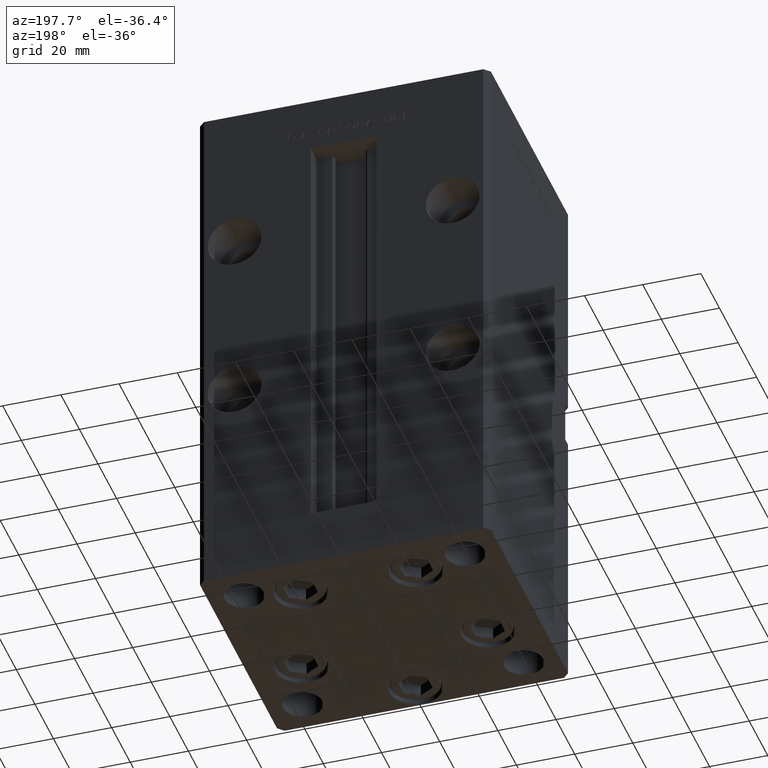
[diagram: clean part render]
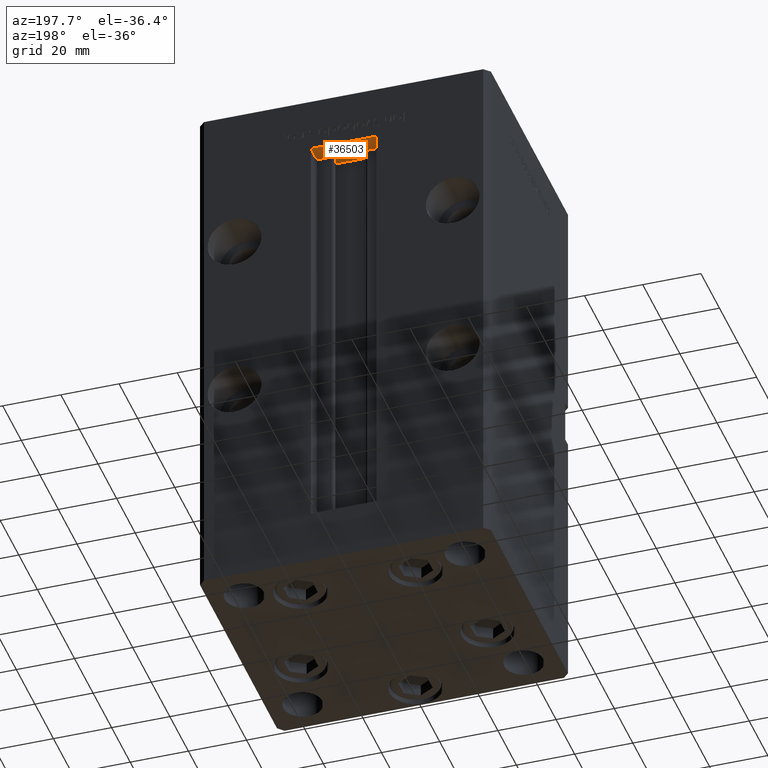
[diagram: same view with one face highlighted and labeled with its STEP entity id]
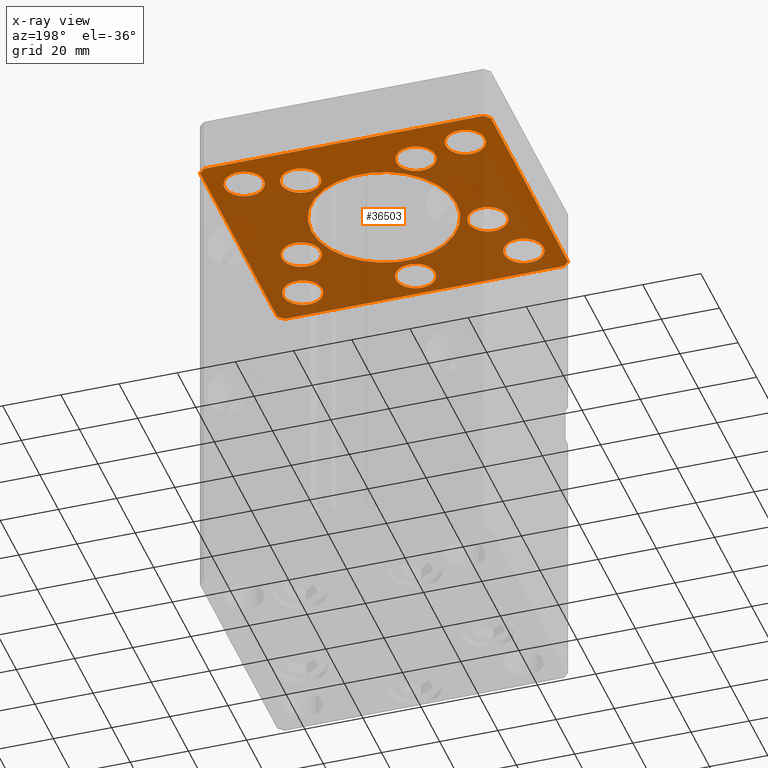
[diagram: x-ray of the same camera — body ghosted, the highlighted face saturated]
A machine part, auxiliary view. The second image highlights one B-rep face of the part: STEP entity #36503.
The next image is the same camera in x-ray: the body ghosted, the highlighted face saturated — about 67% of this face is hidden behind the body in this view.
In plain terms, the highlighted planar face has unit normal (0, 0, 1).
Its self-contained STEP definition (entity closure, byte-faithful):
#273 = LINE ( 'NONE', #49180, #3120 ) ;
#426 = EDGE_CURVE ( 'NONE', #30360, #2090, #19878, .T. ) ;
#481 = FACE_BOUND ( 'NONE', #7501, .T. ) ;
#872 = DIRECTION ( 'NONE',  ( 0.000000000000000000, -0.000000000000000000, -1.000000000000000000 ) ) ;
#1043 = CARTESIAN_POINT ( 'NONE',  ( -48.00000000000000711, -43.50000000000002842, -19.00000000000000000 ) ) ;
#1093 = ORIENTED_EDGE ( 'NONE', *, *, #16519, .F. ) ;
#1665 = ORIENTED_EDGE ( 'NONE', *, *, #46559, .F. ) ;
#1690 = VERTEX_POINT ( 'NONE', #23105 ) ;
#2090 = VERTEX_POINT ( 'NONE', #21383 ) ;
#2268 = CARTESIAN_POINT ( 'NONE',  ( 32.05550741379015989, -11.33333333333332860, -19.00000000000000000 ) ) ;
#2748 = VERTEX_POINT ( 'NONE', #17982 ) ;
#2860 = EDGE_LOOP ( 'NONE', ( #5448, #18806 ) ) ;
#2925 = AXIS2_PLACEMENT_3D ( 'NONE', #19953, #52480, #19414 ) ;
#3008 = EDGE_LOOP ( 'NONE', ( #20061, #1665 ) ) ;
#3120 = VECTOR ( 'NONE', #48642, 1000.000000000000114 ) ;
#3140 = DIRECTION ( 'NONE',  ( 1.000000000000000000, 0.000000000000000000, 0.000000000000000000 ) ) ;
#3162 = DIRECTION ( 'NONE',  ( -0.7071067811865536790, -0.7071067811865414665, 0.000000000000000000 ) ) ;
#3183 = CARTESIAN_POINT ( 'NONE',  ( 38.00000000000000000, 31.50000000000000000, -19.00000000000000000 ) ) ;
#3200 = CIRCLE ( 'NONE', #49537, 6.749999999999999112 ) ;
#3295 = CARTESIAN_POINT ( 'NONE',  ( -38.00000000000000000, 31.50000000000000000, -19.00000000000000000 ) ) ;
#3358 = CARTESIAN_POINT ( 'NONE',  ( 44.75000000000000711, -31.50000000000000711, -19.00000000000000000 ) ) ;
#3369 = CARTESIAN_POINT ( 'NONE',  ( 25.00000000000000000, 0.000000000000000000, -19.00000000000000000 ) ) ;
#3732 = FACE_BOUND ( 'NONE', #43766, .T. ) ;
#4194 = EDGE_CURVE ( 'NONE', #40732, #15206, #46612, .T. ) ;
#4346 = EDGE_CURVE ( 'NONE', #38332, #20423, #42135, .T. ) ;
#4398 = EDGE_CURVE ( 'NONE', #2748, #1690, #37013, .T. ) ;
#5082 = DIRECTION ( 'NONE',  ( -0.000000000000000000, -0.000000000000000000, -1.000000000000000000 ) ) ;
#5448 = ORIENTED_EDGE ( 'NONE', *, *, #11540, .F. ) ;
#5474 = EDGE_LOOP ( 'NONE', ( #36344, #10101, #31749, #16072, #6075, #28567, #12415, #27977 ) ) ;
#5723 = DIRECTION ( 'NONE',  ( 1.000000000000000000, 0.000000000000000000, 0.000000000000000000 ) ) ;
#6075 = ORIENTED_EDGE ( 'NONE', *, *, #4194, .F. ) ;
#6144 = EDGE_CURVE ( 'NONE', #9394, #6585, #41348, .T. ) ;
#6324 = EDGE_CURVE ( 'NONE', #49985, #40732, #32122, .T. ) ;
#6406 = DIRECTION ( 'NONE',  ( 8.360113137237620037E-17, -1.000000000000000000, 0.000000000000000000 ) ) ;
#6585 = VERTEX_POINT ( 'NONE', #44129 ) ;
#6684 = EDGE_CURVE ( 'NONE', #25538, #29711, #40612, .T. ) ;
#6723 = CIRCLE ( 'NONE', #45434, 6.749999999999999112 ) ;
#7162 = CARTESIAN_POINT ( 'NONE',  ( 44.75000000000000000, 31.50000000000000000, -19.00000000000000000 ) ) ;
#7501 = EDGE_LOOP ( 'NONE', ( #7869, #15244 ) ) ;
#7566 = VECTOR ( 'NONE', #6406, 1000.000000000000000 ) ;
#7869 = ORIENTED_EDGE ( 'NONE', *, *, #15639, .T. ) ;
#8017 = FACE_OUTER_BOUND ( 'NONE', #5474, .T. ) ;
#8100 = EDGE_CURVE ( 'NONE', #36306, #13310, #11509, .T. ) ;
#8146 = CARTESIAN_POINT ( 'NONE',  ( -38.00000000000000711, -31.50000000000000711, -19.00000000000000000 ) ) ;
#8287 = FACE_BOUND ( 'NONE', #42581, .T. ) ;
#8561 = CARTESIAN_POINT ( 'NONE',  ( 0.000000000000000000, 0.000000000000000000, -19.00000000000000000 ) ) ;
#8680 = DIRECTION ( 'NONE',  ( -0.000000000000000000, -0.000000000000000000, -1.000000000000000000 ) ) ;
#8977 = CARTESIAN_POINT ( 'NONE',  ( -48.00000000000000711, -43.50000000000002842, -19.00000000000000000 ) ) ;
#9052 = EDGE_CURVE ( 'NONE', #29120, #26952, #47573, .T. ) ;
#9376 = DIRECTION ( 'NONE',  ( 1.000000000000000000, 0.000000000000000000, 0.000000000000000000 ) ) ;
#9394 = VERTEX_POINT ( 'NONE', #46732 ) ;
#10101 = ORIENTED_EDGE ( 'NONE', *, *, #46663, .F. ) ;
#10111 = DIRECTION ( 'NONE',  ( -1.000000000000000000, -2.891205793294678326E-16, 0.000000000000000000 ) ) ;
#10710 = CIRCLE ( 'NONE', #28731, 6.749999999999999112 ) ;
#11509 = CIRCLE ( 'NONE', #48414, 6.749999999999999112 ) ;
#11540 = EDGE_CURVE ( 'NONE', #29711, #25538, #11586, .T. ) ;
#11586 = CIRCLE ( 'NONE', #2925, 6.749999999999999112 ) ;
#11772 = FACE_BOUND ( 'NONE', #2860, .T. ) ;
#11821 = DIRECTION ( 'NONE',  ( 1.000000000000000000, 0.000000000000000000, 0.000000000000000000 ) ) ;
#12415 = ORIENTED_EDGE ( 'NONE', *, *, #41420, .F. ) ;
#12615 = CARTESIAN_POINT ( 'NONE',  ( 0.000000000000000000, -34.00000000000000000, -19.00000000000000000 ) ) ;
#13109 = VERTEX_POINT ( 'NONE', #41044 ) ;
#13310 = VERTEX_POINT ( 'NONE', #7162 ) ;
#13401 = CARTESIAN_POINT ( 'NONE',  ( -50.00000000000000000, -41.50000000000004263, -19.00000000000000000 ) ) ;
#13636 = EDGE_LOOP ( 'NONE', ( #25519, #52615 ) ) ;
#13837 = DIRECTION ( 'NONE',  ( 1.000000000000000000, 0.000000000000000000, 0.000000000000000000 ) ) ;
#13971 = EDGE_CURVE ( 'NONE', #26952, #29120, #24396, .T. ) ;
#14267 = VECTOR ( 'NONE', #3162, 1000.000000000000000 ) ;
#14308 = VERTEX_POINT ( 'NONE', #16463 ) ;
#14446 = ORIENTED_EDGE ( 'NONE', *, *, #30461, .F. ) ;
#14667 = EDGE_CURVE ( 'NONE', #32455, #29106, #30325, .T. ) ;
#14759 = CARTESIAN_POINT ( 'NONE',  ( -31.25000000000000711, -31.50000000000000711, -19.00000000000000000 ) ) ;
#14995 = CARTESIAN_POINT ( 'NONE',  ( -50.00000000000000711, 41.49999999999999289, -19.00000000000000000 ) ) ;
#15049 = CIRCLE ( 'NONE', #35632, 6.749999999999999112 ) ;
#15206 = VERTEX_POINT ( 'NONE', #33655 ) ;
#15244 = ORIENTED_EDGE ( 'NONE', *, *, #8100, .T. ) ;
#15305 = AXIS2_PLACEMENT_3D ( 'NONE', #31306, #27802, #31841 ) ;
#15496 = CARTESIAN_POINT ( 'NONE',  ( -19.82068048781374969, 27.62499999999998934, -19.00000000000000000 ) ) ;
#15610 = DIRECTION ( 'NONE',  ( 0.000000000000000000, -0.000000000000000000, -1.000000000000000000 ) ) ;
#15639 = EDGE_CURVE ( 'NONE', #13310, #36306, #10710, .T. ) ;
#15659 = DIRECTION ( 'NONE',  ( -1.000000000000000000, 0.000000000000000000, 0.000000000000000000 ) ) ;
#16072 = ORIENTED_EDGE ( 'NONE', *, *, #20267, .F. ) ;
#16463 = CARTESIAN_POINT ( 'NONE',  ( 26.57068048781374969, 27.62499999999998934, -19.00000000000000000 ) ) ;
#16519 = EDGE_CURVE ( 'NONE', #43351, #22370, #52790, .T. ) ;
#16815 = EDGE_CURVE ( 'NONE', #22370, #43351, #15049, .T. ) ;
#17453 = AXIS2_PLACEMENT_3D ( 'NONE', #28558, #8680, #24797 ) ;
#17768 = EDGE_LOOP ( 'NONE', ( #37166, #39831 ) ) ;
#17804 = DIRECTION ( 'NONE',  ( 0.000000000000000000, -0.000000000000000000, -1.000000000000000000 ) ) ;
#17982 = CARTESIAN_POINT ( 'NONE',  ( 38.80550741379015989, -11.33333333333332860, -19.00000000000000000 ) ) ;
#18080 = CARTESIAN_POINT ( 'NONE',  ( -50.00000000000000711, 41.49999999999999289, -19.00000000000000000 ) ) ;
#18185 = AXIS2_PLACEMENT_3D ( 'NONE', #12615, #48910, #11821 ) ;
#18806 = ORIENTED_EDGE ( 'NONE', *, *, #6684, .F. ) ;
#19298 = DIRECTION ( 'NONE',  ( 0.000000000000000000, -0.000000000000000000, -1.000000000000000000 ) ) ;
#19306 = EDGE_CURVE ( 'NONE', #42733, #51785, #23578, .T. ) ;
#19414 = DIRECTION ( 'NONE',  ( -1.000000000000000000, 0.000000000000000000, 0.000000000000000000 ) ) ;
#19556 = AXIS2_PLACEMENT_3D ( 'NONE', #34875, #34611, #9376 ) ;
#19562 = DIRECTION ( 'NONE',  ( 0.000000000000000000, 0.000000000000000000, 1.000000000000000000 ) ) ;
#19675 = DIRECTION ( 'NONE',  ( -0.000000000000000000, -0.000000000000000000, -1.000000000000000000 ) ) ;
#19848 = FACE_BOUND ( 'NONE', #31089, .T. ) ;
#19878 = CIRCLE ( 'NONE', #25023, 6.749999999999999112 ) ;
#19953 = CARTESIAN_POINT ( 'NONE',  ( 38.00000000000000711, -31.50000000000000711, -19.00000000000000000 ) ) ;
#20061 = ORIENTED_EDGE ( 'NONE', *, *, #6144, .F. ) ;
#20106 = FACE_BOUND ( 'NONE', #52846, .T. ) ;
#20267 = EDGE_CURVE ( 'NONE', #15206, #42733, #31056, .T. ) ;
#20423 = VERTEX_POINT ( 'NONE', #3369 ) ;
#20900 = DIRECTION ( 'NONE',  ( 1.000000000000000000, 0.000000000000000000, 0.000000000000000000 ) ) ;
#21011 = CARTESIAN_POINT ( 'NONE',  ( 38.00000000000000000, 31.50000000000000000, -19.00000000000000000 ) ) ;
#21104 = CARTESIAN_POINT ( 'NONE',  ( 50.00000000000000000, 41.50000000000000711, -19.00000000000000000 ) ) ;
#21162 = ORIENTED_EDGE ( 'NONE', *, *, #9052, .F. ) ;
#21383 = CARTESIAN_POINT ( 'NONE',  ( -44.75000000000000711, -31.50000000000000711, -19.00000000000000000 ) ) ;
#21586 = CARTESIAN_POINT ( 'NONE',  ( 32.05550741379015989, -11.33333333333332860, -19.00000000000000000 ) ) ;
#21723 = CARTESIAN_POINT ( 'NONE',  ( -38.00000000000000000, 31.50000000000000000, -19.00000000000000000 ) ) ;
#21791 = CARTESIAN_POINT ( 'NONE',  ( -25.30550741379015989, -11.33333333333332860, -19.00000000000000000 ) ) ;
#22370 = VERTEX_POINT ( 'NONE', #40298 ) ;
#22463 = CARTESIAN_POINT ( 'NONE',  ( -32.05550741379015989, -11.33333333333332860, -19.00000000000000000 ) ) ;
#22527 = LINE ( 'NONE', #1043, #34138 ) ;
#22572 = CARTESIAN_POINT ( 'NONE',  ( -50.00000000000000000, -41.50000000000004263, -19.00000000000000000 ) ) ;
#23105 = CARTESIAN_POINT ( 'NONE',  ( 25.30550741379015989, -11.33333333333332860, -19.00000000000000000 ) ) ;
#23578 = LINE ( 'NONE', #39951, #14267 ) ;
#23926 = CIRCLE ( 'NONE', #47942, 6.749999999999999112 ) ;
#24160 = CARTESIAN_POINT ( 'NONE',  ( 48.00000000000000711, -43.49999999999992184, -19.00000000000000000 ) ) ;
#24273 = DIRECTION ( 'NONE',  ( 0.000000000000000000, 0.000000000000000000, 1.000000000000000000 ) ) ;
#24396 = CIRCLE ( 'NONE', #44980, 6.749999999999999112 ) ;
#24674 = AXIS2_PLACEMENT_3D ( 'NONE', #2268, #34522, #13837 ) ;
#24797 = DIRECTION ( 'NONE',  ( -1.000000000000000000, 0.000000000000000000, 0.000000000000000000 ) ) ;
#25023 = AXIS2_PLACEMENT_3D ( 'NONE', #8146, #24273, #28299 ) ;
#25232 = CARTESIAN_POINT ( 'NONE',  ( -25.00000000000000000, 3.061616997868383043E-15, -19.00000000000000000 ) ) ;
#25519 = ORIENTED_EDGE ( 'NONE', *, *, #4398, .F. ) ;
#25538 = VERTEX_POINT ( 'NONE', #43062 ) ;
#25809 = VERTEX_POINT ( 'NONE', #51862 ) ;
#26952 = VERTEX_POINT ( 'NONE', #21791 ) ;
#27244 = CIRCLE ( 'NONE', #24674, 6.749999999999999112 ) ;
#27802 = DIRECTION ( 'NONE',  ( 0.000000000000000000, 0.000000000000000000, 1.000000000000000000 ) ) ;
#27977 = ORIENTED_EDGE ( 'NONE', *, *, #46492, .F. ) ;
#28037 = VECTOR ( 'NONE', #10111, 1000.000000000000000 ) ;
#28299 = DIRECTION ( 'NONE',  ( 1.000000000000000000, 0.000000000000000000, 0.000000000000000000 ) ) ;
#28558 = CARTESIAN_POINT ( 'NONE',  ( 38.00000000000000711, -31.50000000000000711, -19.00000000000000000 ) ) ;
#28567 = ORIENTED_EDGE ( 'NONE', *, *, #6324, .F. ) ;
#28731 = AXIS2_PLACEMENT_3D ( 'NONE', #3183, #19562, #43477 ) ;
#29106 = VERTEX_POINT ( 'NONE', #8977 ) ;
#29120 = VERTEX_POINT ( 'NONE', #29913 ) ;
#29500 = EDGE_CURVE ( 'NONE', #35271, #25809, #6723, .T. ) ;
#29579 = AXIS2_PLACEMENT_3D ( 'NONE', #49783, #872, #33128 ) ;
#29697 = EDGE_CURVE ( 'NONE', #2090, #30360, #47903, .T. ) ;
#29711 = VERTEX_POINT ( 'NONE', #3358 ) ;
#29913 = CARTESIAN_POINT ( 'NONE',  ( -38.80550741379015989, -11.33333333333332860, -19.00000000000000000 ) ) ;
#30157 = AXIS2_PLACEMENT_3D ( 'NONE', #44697, #32087, #32886 ) ;
#30325 = LINE ( 'NONE', #13401, #47612 ) ;
#30360 = VERTEX_POINT ( 'NONE', #14759 ) ;
#30461 = EDGE_CURVE ( 'NONE', #14308, #13109, #23926, .T. ) ;
#31056 = LINE ( 'NONE', #46904, #28037 ) ;
#31089 = EDGE_LOOP ( 'NONE', ( #34187, #31806 ) ) ;
#31306 = CARTESIAN_POINT ( 'NONE',  ( -38.00000000000000711, -31.50000000000000711, -19.00000000000000000 ) ) ;
#31436 = DIRECTION ( 'NONE',  ( 1.000000000000000000, 0.000000000000000000, 0.000000000000000000 ) ) ;
#31459 = DIRECTION ( 'NONE',  ( 1.000000000000000000, 0.000000000000000000, 0.000000000000000000 ) ) ;
#31489 = ORIENTED_EDGE ( 'NONE', *, *, #39032, .F. ) ;
#31749 = ORIENTED_EDGE ( 'NONE', *, *, #19306, .F. ) ;
#31806 = ORIENTED_EDGE ( 'NONE', *, *, #4346, .F. ) ;
#31841 = DIRECTION ( 'NONE',  ( 1.000000000000000000, 0.000000000000000000, 0.000000000000000000 ) ) ;
#32087 = DIRECTION ( 'NONE',  ( 0.000000000000000000, -0.000000000000000000, -1.000000000000000000 ) ) ;
#32122 = LINE ( 'NONE', #48773, #40464 ) ;
#32455 = VERTEX_POINT ( 'NONE', #22572 ) ;
#32578 = VERTEX_POINT ( 'NONE', #24160 ) ;
#32744 = FACE_BOUND ( 'NONE', #45551, .T. ) ;
#32852 = DIRECTION ( 'NONE',  ( 1.000000000000000000, 0.000000000000000000, 0.000000000000000000 ) ) ;
#32886 = DIRECTION ( 'NONE',  ( 1.000000000000000000, 0.000000000000000000, 0.000000000000000000 ) ) ;
#32917 = DIRECTION ( 'NONE',  ( 1.000000000000000000, 0.000000000000000000, 0.000000000000000000 ) ) ;
#33128 = DIRECTION ( 'NONE',  ( 1.000000000000000000, 0.000000000000000000, 0.000000000000000000 ) ) ;
#33655 = CARTESIAN_POINT ( 'NONE',  ( 47.99999999999999289, 43.50000000000000000, -19.00000000000000000 ) ) ;
#34138 = VECTOR ( 'NONE', #42132, 1000.000000000000000 ) ;
#34187 = ORIENTED_EDGE ( 'NONE', *, *, #50862, .F. ) ;
#34522 = DIRECTION ( 'NONE',  ( 0.000000000000000000, -0.000000000000000000, -1.000000000000000000 ) ) ;
#34611 = DIRECTION ( 'NONE',  ( 0.000000000000000000, -0.000000000000000000, -1.000000000000000000 ) ) ;
#34875 = CARTESIAN_POINT ( 'NONE',  ( 0.000000000000000000, -34.00000000000000000, -19.00000000000000000 ) ) ;
#35271 = VERTEX_POINT ( 'NONE', #44068 ) ;
#35500 = ORIENTED_EDGE ( 'NONE', *, *, #16815, .F. ) ;
#35632 = AXIS2_PLACEMENT_3D ( 'NONE', #21723, #5082, #51007 ) ;
#36170 = VECTOR ( 'NONE', #41524, 999.9999999999998863 ) ;
#36306 = VERTEX_POINT ( 'NONE', #47544 ) ;
#36344 = ORIENTED_EDGE ( 'NONE', *, *, #14667, .F. ) ;
#36485 = FACE_BOUND ( 'NONE', #3008, .T. ) ;
#36503 = ADVANCED_FACE ( 'NONE', ( #19848, #8287, #36485, #52894, #3732, #20106, #481, #52633, #8017, #32744, #11772 ), #49130, .F. ) ;
#36901 = CIRCLE ( 'NONE', #38569, 25.00000000000000000 ) ;
#37013 = CIRCLE ( 'NONE', #43868, 6.749999999999999112 ) ;
#37166 = ORIENTED_EDGE ( 'NONE', *, *, #426, .T. ) ;
#37728 = CARTESIAN_POINT ( 'NONE',  ( 19.82068048781374969, 27.62499999999998934, -19.00000000000000000 ) ) ;
#38332 = VERTEX_POINT ( 'NONE', #25232 ) ;
#38569 = AXIS2_PLACEMENT_3D ( 'NONE', #40034, #15610, #31459 ) ;
#38747 = ORIENTED_EDGE ( 'NONE', *, *, #42887, .F. ) ;
#39032 = EDGE_CURVE ( 'NONE', #13109, #14308, #52473, .T. ) ;
#39831 = ORIENTED_EDGE ( 'NONE', *, *, #29697, .T. ) ;
#39951 = CARTESIAN_POINT ( 'NONE',  ( -48.00000000000000000, 43.49999999999997158, -19.00000000000000000 ) ) ;
#40034 = CARTESIAN_POINT ( 'NONE',  ( 0.000000000000000000, 0.000000000000000000, -19.00000000000000000 ) ) ;
#40298 = CARTESIAN_POINT ( 'NONE',  ( -44.75000000000000000, 31.50000000000000000, -19.00000000000000000 ) ) ;
#40367 = AXIS2_PLACEMENT_3D ( 'NONE', #8561, #48859, #20900 ) ;
#40464 = VECTOR ( 'NONE', #48507, 1000.000000000000000 ) ;
#40612 = CIRCLE ( 'NONE', #17453, 6.749999999999999112 ) ;
#40732 = VERTEX_POINT ( 'NONE', #45578 ) ;
#41044 = CARTESIAN_POINT ( 'NONE',  ( 13.07068048781375147, 27.62499999999998934, -19.00000000000000000 ) ) ;
#41348 = CIRCLE ( 'NONE', #18185, 6.749999999999999112 ) ;
#41420 = EDGE_CURVE ( 'NONE', #32578, #49985, #273, .T. ) ;
#41524 = DIRECTION ( 'NONE',  ( -0.7071067811865512365, 0.7071067811865439090, 0.000000000000000000 ) ) ;
#42132 = DIRECTION ( 'NONE',  ( 1.000000000000000000, 1.156482317317871331E-15, 0.000000000000000000 ) ) ;
#42135 = CIRCLE ( 'NONE', #30157, 25.00000000000000000 ) ;
#42216 = DIRECTION ( 'NONE',  ( 0.000000000000000000, 0.000000000000000000, 1.000000000000000000 ) ) ;
#42328 = DIRECTION ( 'NONE',  ( 1.000000000000000000, 0.000000000000000000, 0.000000000000000000 ) ) ;
#42581 = EDGE_LOOP ( 'NONE', ( #46883, #21162 ) ) ;
#42711 = CARTESIAN_POINT ( 'NONE',  ( -19.82068048781374969, 27.62499999999998934, -19.00000000000000000 ) ) ;
#42712 = CIRCLE ( 'NONE', #19556, 6.749999999999999112 ) ;
#42733 = VERTEX_POINT ( 'NONE', #49656 ) ;
#42887 = EDGE_CURVE ( 'NONE', #25809, #35271, #3200, .T. ) ;
#43062 = CARTESIAN_POINT ( 'NONE',  ( 31.25000000000000711, -31.50000000000000711, -19.00000000000000000 ) ) ;
#43351 = VERTEX_POINT ( 'NONE', #51316 ) ;
#43477 = DIRECTION ( 'NONE',  ( 1.000000000000000000, 0.000000000000000000, 0.000000000000000000 ) ) ;
#43766 = EDGE_LOOP ( 'NONE', ( #14446, #31489 ) ) ;
#43868 = AXIS2_PLACEMENT_3D ( 'NONE', #21586, #17804, #5723 ) ;
#44068 = CARTESIAN_POINT ( 'NONE',  ( -13.07068048781375325, 27.62499999999998934, -19.00000000000000000 ) ) ;
#44129 = CARTESIAN_POINT ( 'NONE',  ( -6.749999999999999112, -34.00000000000000000, -19.00000000000000000 ) ) ;
#44697 = CARTESIAN_POINT ( 'NONE',  ( 0.000000000000000000, 0.000000000000000000, -19.00000000000000000 ) ) ;
#44774 = EDGE_CURVE ( 'NONE', #1690, #2748, #27244, .T. ) ;
#44980 = AXIS2_PLACEMENT_3D ( 'NONE', #22463, #47174, #42328 ) ;
#45434 = AXIS2_PLACEMENT_3D ( 'NONE', #42711, #51329, #31436 ) ;
#45551 = EDGE_LOOP ( 'NONE', ( #1093, #35500 ) ) ;
#45578 = CARTESIAN_POINT ( 'NONE',  ( 50.00000000000000000, 41.50000000000000711, -19.00000000000000000 ) ) ;
#45893 = AXIS2_PLACEMENT_3D ( 'NONE', #3295, #19675, #15659 ) ;
#46492 = EDGE_CURVE ( 'NONE', #29106, #32578, #22527, .T. ) ;
#46559 = EDGE_CURVE ( 'NONE', #6585, #9394, #42712, .T. ) ;
#46612 = LINE ( 'NONE', #21104, #36170 ) ;
#46663 = EDGE_CURVE ( 'NONE', #51785, #32455, #48559, .T. ) ;
#46732 = CARTESIAN_POINT ( 'NONE',  ( 6.749999999999999112, -34.00000000000000000, -19.00000000000000000 ) ) ;
#46883 = ORIENTED_EDGE ( 'NONE', *, *, #13971, .F. ) ;
#46904 = CARTESIAN_POINT ( 'NONE',  ( 47.99999999999999289, 43.50000000000000000, -19.00000000000000000 ) ) ;
#47174 = DIRECTION ( 'NONE',  ( 0.000000000000000000, -0.000000000000000000, -1.000000000000000000 ) ) ;
#47544 = CARTESIAN_POINT ( 'NONE',  ( 31.25000000000000000, 31.50000000000000000, -19.00000000000000000 ) ) ;
#47573 = CIRCLE ( 'NONE', #29579, 6.749999999999999112 ) ;
#47612 = VECTOR ( 'NONE', #50230, 1000.000000000000000 ) ;
#47903 = CIRCLE ( 'NONE', #15305, 6.749999999999999112 ) ;
#47942 = AXIS2_PLACEMENT_3D ( 'NONE', #48573, #19298, #48315 ) ;
#48315 = DIRECTION ( 'NONE',  ( 1.000000000000000000, 0.000000000000000000, 0.000000000000000000 ) ) ;
#48414 = AXIS2_PLACEMENT_3D ( 'NONE', #21011, #42216, #32852 ) ;
#48507 = DIRECTION ( 'NONE',  ( 0.000000000000000000, 1.000000000000000000, 0.000000000000000000 ) ) ;
#48559 = LINE ( 'NONE', #14995, #7566 ) ;
#48573 = CARTESIAN_POINT ( 'NONE',  ( 19.82068048781374969, 27.62499999999998934, -19.00000000000000000 ) ) ;
#48642 = DIRECTION ( 'NONE',  ( 0.7071067811865474617, 0.7071067811865474617, 0.000000000000000000 ) ) ;
#48773 = CARTESIAN_POINT ( 'NONE',  ( 50.00000000000000000, -41.49999999999992895, -19.00000000000000000 ) ) ;
#48859 = DIRECTION ( 'NONE',  ( -0.000000000000000000, 0.000000000000000000, 1.000000000000000000 ) ) ;
#48910 = DIRECTION ( 'NONE',  ( 0.000000000000000000, -0.000000000000000000, -1.000000000000000000 ) ) ;
#48965 = CARTESIAN_POINT ( 'NONE',  ( 50.00000000000000000, -41.49999999999992895, -19.00000000000000000 ) ) ;
#49058 = AXIS2_PLACEMENT_3D ( 'NONE', #37728, #49842, #32917 ) ;
#49130 = PLANE ( 'NONE',  #40367 ) ;
#49180 = CARTESIAN_POINT ( 'NONE',  ( 48.00000000000000711, -43.49999999999992184, -19.00000000000000000 ) ) ;
#49537 = AXIS2_PLACEMENT_3D ( 'NONE', #15496, #52836, #3140 ) ;
#49656 = CARTESIAN_POINT ( 'NONE',  ( -48.00000000000000000, 43.49999999999997158, -19.00000000000000000 ) ) ;
#49783 = CARTESIAN_POINT ( 'NONE',  ( -32.05550741379015989, -11.33333333333332860, -19.00000000000000000 ) ) ;
#49842 = DIRECTION ( 'NONE',  ( 0.000000000000000000, -0.000000000000000000, -1.000000000000000000 ) ) ;
#49985 = VERTEX_POINT ( 'NONE', #48965 ) ;
#50230 = DIRECTION ( 'NONE',  ( 0.7071067811865487940, -0.7071067811865463515, 0.000000000000000000 ) ) ;
#50862 = EDGE_CURVE ( 'NONE', #20423, #38332, #36901, .T. ) ;
#51007 = DIRECTION ( 'NONE',  ( -1.000000000000000000, 0.000000000000000000, 0.000000000000000000 ) ) ;
#51316 = CARTESIAN_POINT ( 'NONE',  ( -31.25000000000000000, 31.50000000000000000, -19.00000000000000000 ) ) ;
#51329 = DIRECTION ( 'NONE',  ( 0.000000000000000000, -0.000000000000000000, -1.000000000000000000 ) ) ;
#51785 = VERTEX_POINT ( 'NONE', #18080 ) ;
#51862 = CARTESIAN_POINT ( 'NONE',  ( -26.57068048781375325, 27.62499999999998934, -19.00000000000000000 ) ) ;
#52368 = ORIENTED_EDGE ( 'NONE', *, *, #29500, .F. ) ;
#52473 = CIRCLE ( 'NONE', #49058, 6.749999999999999112 ) ;
#52480 = DIRECTION ( 'NONE',  ( -0.000000000000000000, -0.000000000000000000, -1.000000000000000000 ) ) ;
#52615 = ORIENTED_EDGE ( 'NONE', *, *, #44774, .F. ) ;
#52633 = FACE_BOUND ( 'NONE', #17768, .T. ) ;
#52790 = CIRCLE ( 'NONE', #45893, 6.749999999999999112 ) ;
#52836 = DIRECTION ( 'NONE',  ( 0.000000000000000000, -0.000000000000000000, -1.000000000000000000 ) ) ;
#52846 = EDGE_LOOP ( 'NONE', ( #52368, #38747 ) ) ;
#52894 = FACE_BOUND ( 'NONE', #13636, .T. ) ;